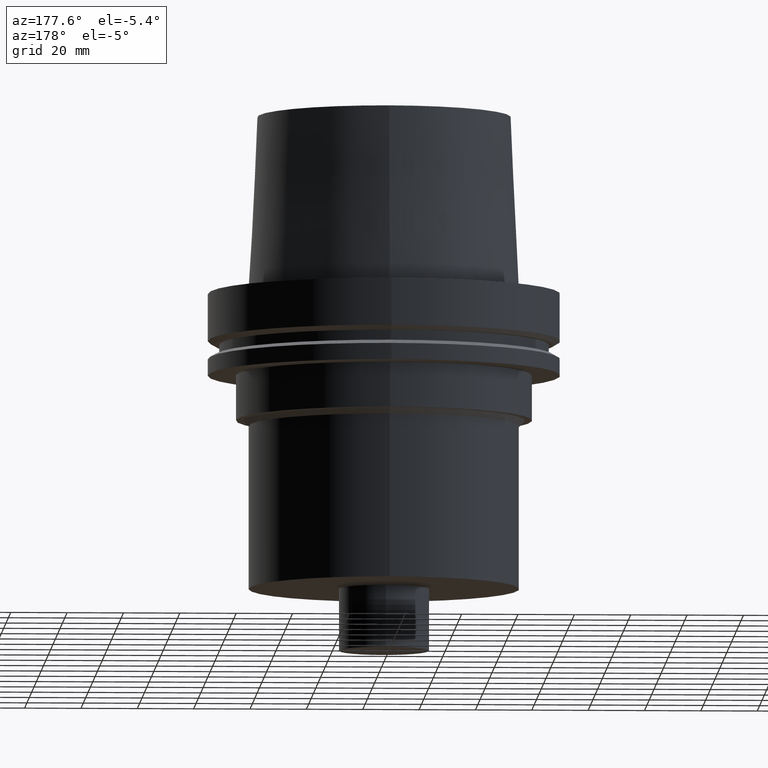
[diagram: clean part render]
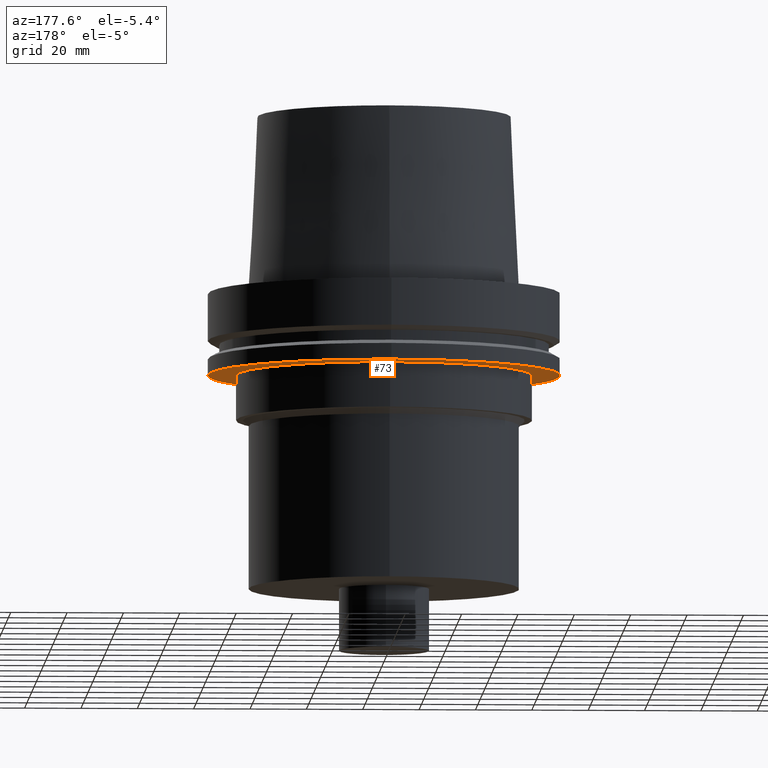
[diagram: same view with one face highlighted and labeled with its STEP entity id]
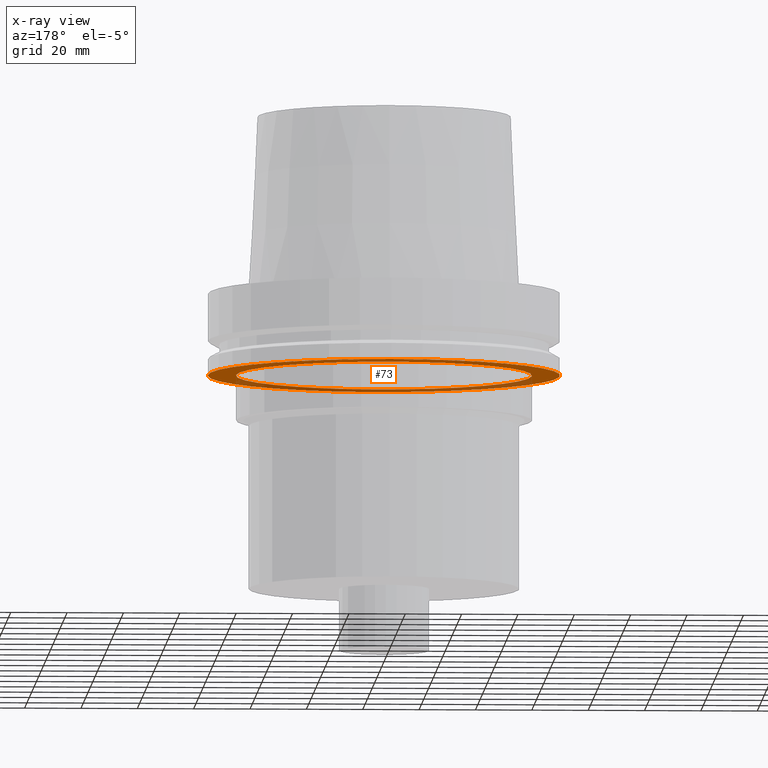
[diagram: x-ray of the same camera — body ghosted, the highlighted face saturated]
A machine part, auxiliary view. The second image highlights one B-rep face of the part: STEP entity #73.
The next image is the same camera in x-ray: the body ghosted, the highlighted face saturated — about 37% of this face is hidden behind the body in this view.
In plain terms, the highlighted planar face has unit normal (0, 0, -1).
Its self-contained STEP definition (entity closure, byte-faithful):
#73=ADVANCED_FACE('Unnamed[1]',(#188,#189),#190,.T.);
#99=EDGE_CURVE('Unnamed[1]',#230,#230,#231,.T.);
#120=EDGE_CURVE('Unnamed[1]',#262,#262,#263,.T.);
#188=FACE_BOUND('',#341,.T.);
#189=FACE_OUTER_BOUND('',#342,.T.);
#190=PLANE('',#343);
#230=VERTEX_POINT('',#393);
#231=CIRCLE('',#394,62.5);
#262=VERTEX_POINT('',#434);
#263=CIRCLE('',#435,52.5);
#341=EDGE_LOOP('',(#517));
#342=EDGE_LOOP('',(#518));
#343=AXIS2_PLACEMENT_3D('',#519,#520,#521);
#393=CARTESIAN_POINT('',(1.77573785876367E-015,62.5,-29.0000000000001));
#394=AXIS2_PLACEMENT_3D('',#566,#567,#568);
#434=CARTESIAN_POINT('',(1.77573785876367E-015,52.5,-29.0000000000001));
#435=AXIS2_PLACEMENT_3D('',#601,#602,#603);
#517=ORIENTED_EDGE('',*,*,#120,.F.);
#518=ORIENTED_EDGE('',*,*,#99,.T.);
#519=CARTESIAN_POINT('',(1.77573785876367E-015,57.5,-29.0000000000001));
#520=DIRECTION('',(6.12323399573677E-017,1.22464679914735E-016,-1.0));
#521=DIRECTION('',(-1.23259516440783E-032,1.0,1.22464679914735E-016));
#566=CARTESIAN_POINT('',(1.77573785876367E-015,3.55147571752733E-015,-29.0000000000001));
#567=DIRECTION('',(6.12323399573677E-017,1.22464679914735E-016,-1.0));
#568=DIRECTION('',(-1.23259516440783E-032,1.0,1.22464679914735E-016));
#601=CARTESIAN_POINT('',(1.77573785876367E-015,3.55147571752733E-015,-29.0000000000001));
#602=DIRECTION('',(6.12323399573677E-017,1.22464679914735E-016,-1.0));
#603=DIRECTION('',(-1.23259516440783E-032,1.0,1.22464679914735E-016));